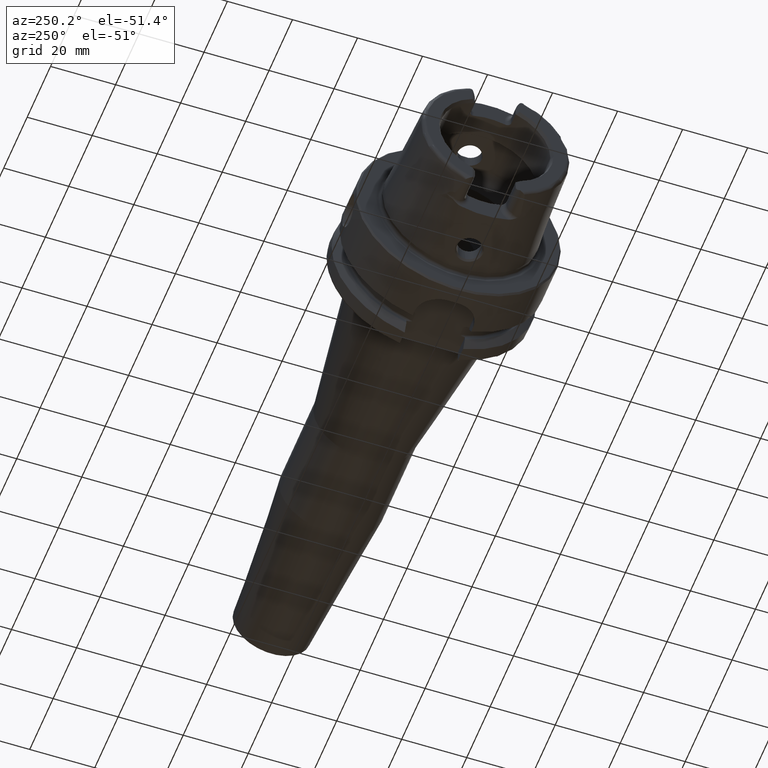
[diagram: clean part render]
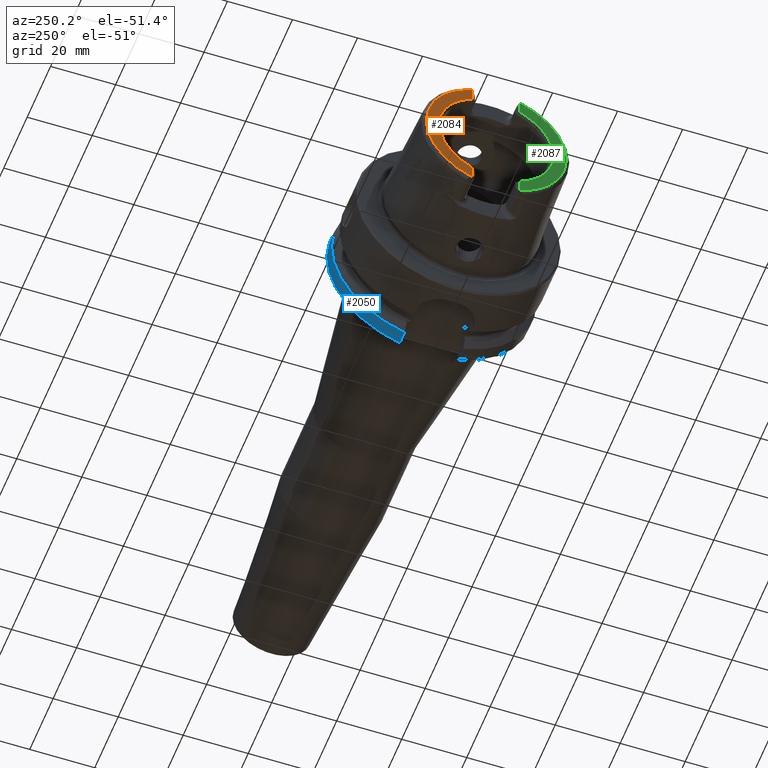
[diagram: same view with three faces highlighted in distinct colors, each labeled with its STEP entity id]
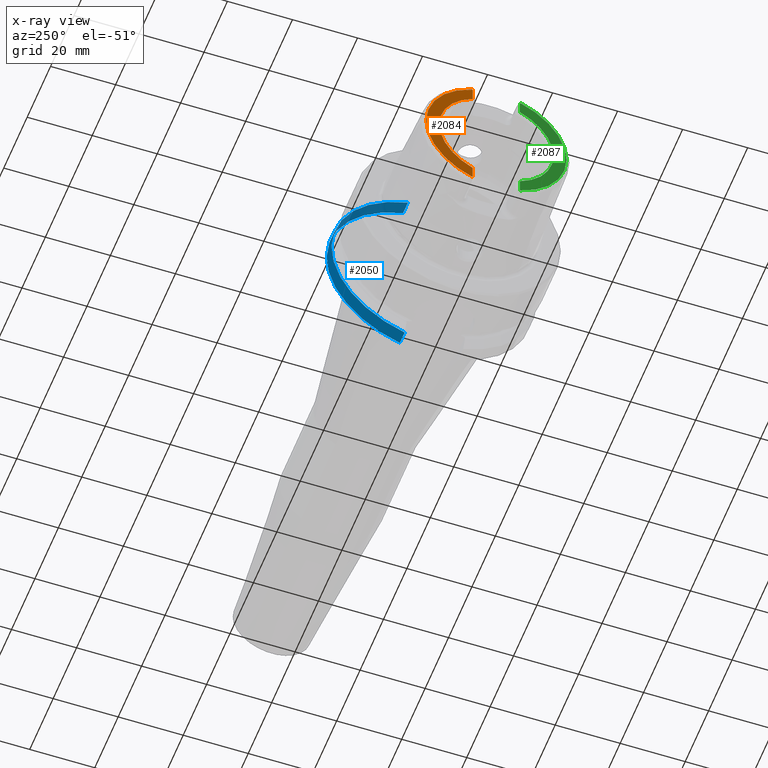
[diagram: x-ray of the same camera — body ghosted, the three highlighted faces saturated]
A machine part, auxiliary view with three faces highlighted in distinct colors.
The next image is the same camera in x-ray (body ghosted, the three faces saturated) — at least one of them is partly hidden behind the body in this view.
Their STEP definitions:

[orange] entity #2084 — the highlighted planar face has unit normal (-1, 0, 0).
#137=PLANE('',#2334);
#310=FACE_OUTER_BOUND('',#439,.T.);
#439=EDGE_LOOP('',(#1870,#1871,#1872,#1873,#1874,#1875));
#492=LINE('',#3154,#603);
#502=LINE('',#3247,#613);
#603=VECTOR('',#2512,10.);
#613=VECTOR('',#2550,10.);
#711=CIRCLE('',#2182,2.88);
#717=CIRCLE('',#2197,2.88);
#785=CIRCLE('',#2333,17.5773502691896);
#786=CIRCLE('',#2335,21.5760400159857);
#854=VERTEX_POINT('',#3147);
#857=VERTEX_POINT('',#3152);
#860=VERTEX_POINT('',#3162);
#875=VERTEX_POINT('',#3244);
#876=VERTEX_POINT('',#3246);
#881=VERTEX_POINT('',#3265);
#1076=EDGE_CURVE('',#857,#854,#492,.T.);
#1080=EDGE_CURVE('',#860,#854,#711,.T.);
#1098=EDGE_CURVE('',#875,#876,#502,.T.);
#1105=EDGE_CURVE('',#875,#881,#717,.T.);
#1300=EDGE_CURVE('',#876,#857,#785,.T.);
#1301=EDGE_CURVE('',#860,#881,#786,.T.);
#1870=ORIENTED_EDGE('',*,*,#1076,.F.);
#1871=ORIENTED_EDGE('',*,*,#1300,.F.);
#1872=ORIENTED_EDGE('',*,*,#1098,.F.);
#1873=ORIENTED_EDGE('',*,*,#1105,.T.);
#1874=ORIENTED_EDGE('',*,*,#1301,.F.);
#1875=ORIENTED_EDGE('',*,*,#1080,.T.);
#2084=ADVANCED_FACE('',(#310),#137,.T.);
#2182=AXIS2_PLACEMENT_3D('',#3163,#2520,#2521);
#2197=AXIS2_PLACEMENT_3D('',#3278,#2559,#2560);
#2333=AXIS2_PLACEMENT_3D('',#4394,#2894,#2895);
#2334=AXIS2_PLACEMENT_3D('',#4395,#2896,#2897);
#2335=AXIS2_PLACEMENT_3D('',#4396,#2898,#2899);
#2512=DIRECTION('',(0.,0.,-1.));
#2520=DIRECTION('center_axis',(-1.,0.,0.));
#2521=DIRECTION('ref_axis',(0.,-0.453346760926793,0.891334232685576));
#2550=DIRECTION('',(0.,1.58830189502884E-16,-1.));
#2559=DIRECTION('center_axis',(-1.,0.,0.));
#2560=DIRECTION('ref_axis',(0.,1.,0.));
#2894=DIRECTION('center_axis',(-1.,0.,0.));
#2895=DIRECTION('ref_axis',(0.,-1.,0.));
#2896=DIRECTION('center_axis',(-1.,0.,0.));
#2897=DIRECTION('ref_axis',(0.,0.,1.));
#2898=DIRECTION('center_axis',(1.,0.,0.));
#2899=DIRECTION('ref_axis',(0.,0.,-1.));
#3147=CARTESIAN_POINT('',(-32.,7.27,-20.1717424229271));
#3152=CARTESIAN_POINT('',(-32.,7.27,-16.003447831195));
#3154=CARTESIAN_POINT('',(-32.,7.27,-5.5));
#3162=CARTESIAN_POINT('',(-32.,7.39118810947246,-20.2705658801576));
#3163=CARTESIAN_POINT('Origin',(-32.,9.15,-17.99));
#3244=CARTESIAN_POINT('',(-32.,7.27,20.1717424229271));
#3246=CARTESIAN_POINT('',(-32.,7.27,16.003447831195));
#3247=CARTESIAN_POINT('',(-32.,7.27,8.995));
#3265=CARTESIAN_POINT('',(-32.,7.39118810947246,20.2705658801576));
#3278=CARTESIAN_POINT('Origin',(-32.,9.15,17.99));
#4394=CARTESIAN_POINT('Origin',(-32.,0.,0.));
#4395=CARTESIAN_POINT('Origin',(-32.,21.5760400159857,0.));
#4396=CARTESIAN_POINT('Origin',(-32.,0.,0.));

[blue] entity #2050 — the highlighted cylindrical surface (partial cylindrical patch) has radius 31.5 mm, axis along (1, 0, 0).
#195=CYLINDRICAL_SURFACE('',#2271,31.5);
#276=FACE_OUTER_BOUND('',#404,.T.);
#404=EDGE_LOOP('',(#1682,#1683,#1684,#1685));
#534=LINE('',#4015,#645);
#548=LINE('',#4195,#659);
#645=VECTOR('',#2692,10.);
#659=VECTOR('',#2754,10.);
#755=CIRCLE('',#2268,31.5);
#757=CIRCLE('',#2272,31.5);
#945=VERTEX_POINT('',#3991);
#949=VERTEX_POINT('',#4011);
#974=VERTEX_POINT('',#4178);
#975=VERTEX_POINT('',#4193);
#1202=EDGE_CURVE('',#945,#949,#534,.T.);
#1238=EDGE_CURVE('',#945,#974,#755,.T.);
#1241=EDGE_CURVE('',#949,#975,#757,.T.);
#1242=EDGE_CURVE('',#975,#974,#548,.T.);
#1682=ORIENTED_EDGE('',*,*,#1202,.T.);
#1683=ORIENTED_EDGE('',*,*,#1241,.T.);
#1684=ORIENTED_EDGE('',*,*,#1242,.T.);
#1685=ORIENTED_EDGE('',*,*,#1238,.F.);
#2050=ADVANCED_FACE('',(#276),#195,.T.);
#2268=AXIS2_PLACEMENT_3D('',#4179,#2744,#2745);
#2271=AXIS2_PLACEMENT_3D('',#4192,#2750,#2751);
#2272=AXIS2_PLACEMENT_3D('',#4194,#2752,#2753);
#2692=DIRECTION('',(-1.,0.,0.));
#2744=DIRECTION('center_axis',(1.,0.,0.));
#2745=DIRECTION('ref_axis',(0.,0.,-1.));
#2750=DIRECTION('center_axis',(1.,0.,0.));
#2751=DIRECTION('ref_axis',(0.,1.,0.));
#2752=DIRECTION('center_axis',(1.,0.,0.));
#2753=DIRECTION('ref_axis',(0.,0.,-1.));
#2754=DIRECTION('',(1.,0.,0.));
#3991=CARTESIAN_POINT('',(25.5,9.,-30.1869176962472));
#4011=CARTESIAN_POINT('',(21.3774990747593,9.,-30.1869176962472));
#4015=CARTESIAN_POINT('',(23.4387495373797,9.,-30.1869176962472));
#4178=CARTESIAN_POINT('',(25.5,8.,30.4671954731642));
#4179=CARTESIAN_POINT('Origin',(25.5,0.,0.));
#4192=CARTESIAN_POINT('Origin',(23.4387495373797,0.,0.));
#4193=CARTESIAN_POINT('',(21.3774990747593,8.,30.4671954731642));
#4194=CARTESIAN_POINT('Origin',(21.3774990747593,0.,0.));
#4195=CARTESIAN_POINT('',(23.4387495373797,8.,30.4671954731642));

[green] entity #2087 — the highlighted planar face has unit normal (-1, 0, 0).
#139=PLANE('',#2338);
#313=FACE_OUTER_BOUND('',#442,.T.);
#442=EDGE_LOOP('',(#1883,#1884,#1885,#1886,#1887,#1888));
#485=LINE('',#3096,#596);
#498=LINE('',#3209,#609);
#596=VECTOR('',#2487,10.);
#609=VECTOR('',#2534,10.);
#710=CIRCLE('',#2175,2.88);
#714=CIRCLE('',#2190,2.88);
#787=CIRCLE('',#2339,21.5760400159857);
#788=CIRCLE('',#2340,17.5773502691896);
#844=VERTEX_POINT('',#3093);
#845=VERTEX_POINT('',#3095);
#852=VERTEX_POINT('',#3128);
#865=VERTEX_POINT('',#3202);
#868=VERTEX_POINT('',#3207);
#871=VERTEX_POINT('',#3217);
#1061=EDGE_CURVE('',#844,#845,#485,.T.);
#1070=EDGE_CURVE('',#844,#852,#710,.T.);
#1089=EDGE_CURVE('',#868,#865,#498,.T.);
#1093=EDGE_CURVE('',#871,#865,#714,.T.);
#1302=EDGE_CURVE('',#871,#852,#787,.T.);
#1303=EDGE_CURVE('',#845,#868,#788,.T.);
#1883=ORIENTED_EDGE('',*,*,#1061,.F.);
#1884=ORIENTED_EDGE('',*,*,#1070,.T.);
#1885=ORIENTED_EDGE('',*,*,#1302,.F.);
#1886=ORIENTED_EDGE('',*,*,#1093,.T.);
#1887=ORIENTED_EDGE('',*,*,#1089,.F.);
#1888=ORIENTED_EDGE('',*,*,#1303,.F.);
#2087=ADVANCED_FACE('',(#313),#139,.T.);
#2175=AXIS2_PLACEMENT_3D('',#3141,#2499,#2500);
#2190=AXIS2_PLACEMENT_3D('',#3218,#2542,#2543);
#2338=AXIS2_PLACEMENT_3D('',#4399,#2904,#2905);
#2339=AXIS2_PLACEMENT_3D('',#4400,#2906,#2907);
#2340=AXIS2_PLACEMENT_3D('',#4401,#2908,#2909);
#2487=DIRECTION('',(0.,0.,1.));
#2499=DIRECTION('center_axis',(-1.,0.,0.));
#2500=DIRECTION('ref_axis',(0.,-1.,0.));
#2534=DIRECTION('',(0.,1.58830189502884E-16,1.));
#2542=DIRECTION('center_axis',(-1.,0.,0.));
#2543=DIRECTION('ref_axis',(0.,0.453346760926795,-0.891334232685576));
#2904=DIRECTION('center_axis',(-1.,0.,0.));
#2905=DIRECTION('ref_axis',(0.,0.,1.));
#2906=DIRECTION('center_axis',(1.,0.,0.));
#2907=DIRECTION('ref_axis',(0.,0.,-1.));
#2908=DIRECTION('center_axis',(-1.,0.,0.));
#2909=DIRECTION('ref_axis',(0.,-1.,0.));
#3093=CARTESIAN_POINT('',(-32.,-7.27,-20.1717424229271));
#3095=CARTESIAN_POINT('',(-32.,-7.27,-16.003447831195));
#3096=CARTESIAN_POINT('',(-32.,-7.27,-8.995));
#3128=CARTESIAN_POINT('',(-32.,-7.39118810947246,-20.2705658801576));
#3141=CARTESIAN_POINT('Origin',(-32.,-9.15,-17.99));
#3202=CARTESIAN_POINT('',(-32.,-7.26999999999999,20.1717424229271));
#3207=CARTESIAN_POINT('',(-32.,-7.26999999999999,16.003447831195));
#3209=CARTESIAN_POINT('',(-32.,-7.27,5.5));
#3217=CARTESIAN_POINT('',(-32.,-7.39118810947246,20.2705658801576));
#3218=CARTESIAN_POINT('Origin',(-32.,-9.15,17.99));
#4399=CARTESIAN_POINT('Origin',(-32.,21.5760400159857,0.));
#4400=CARTESIAN_POINT('Origin',(-32.,0.,0.));
#4401=CARTESIAN_POINT('Origin',(-32.,0.,0.));